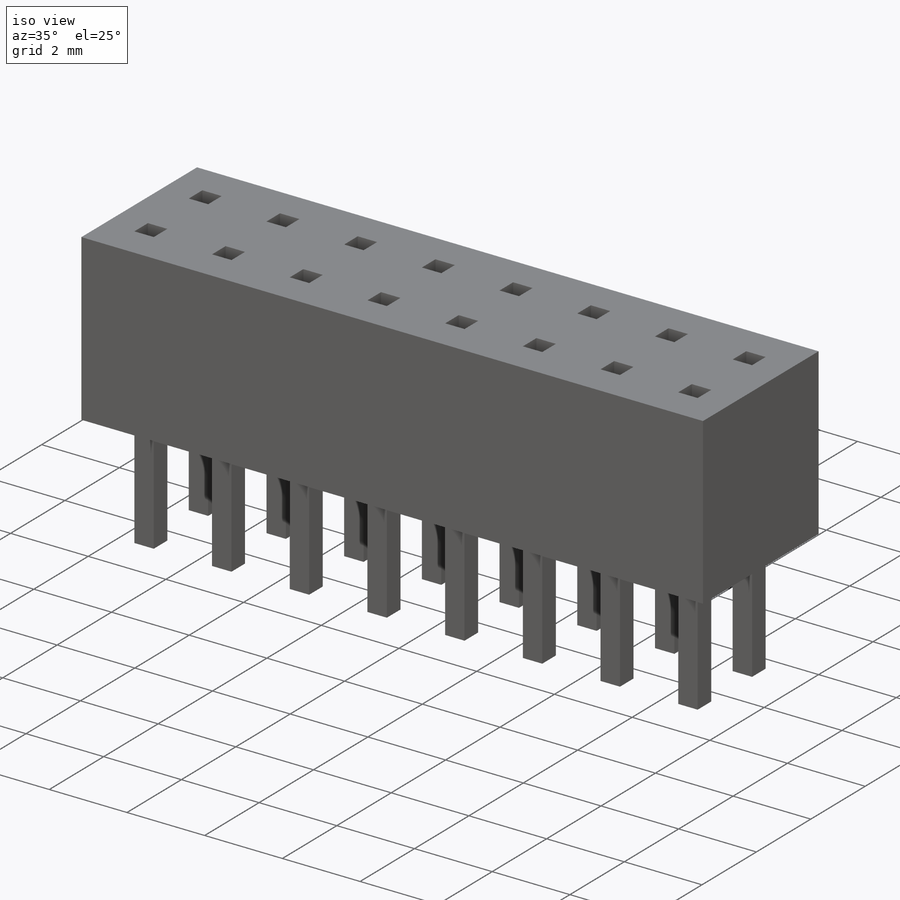
[diagram: iso view]
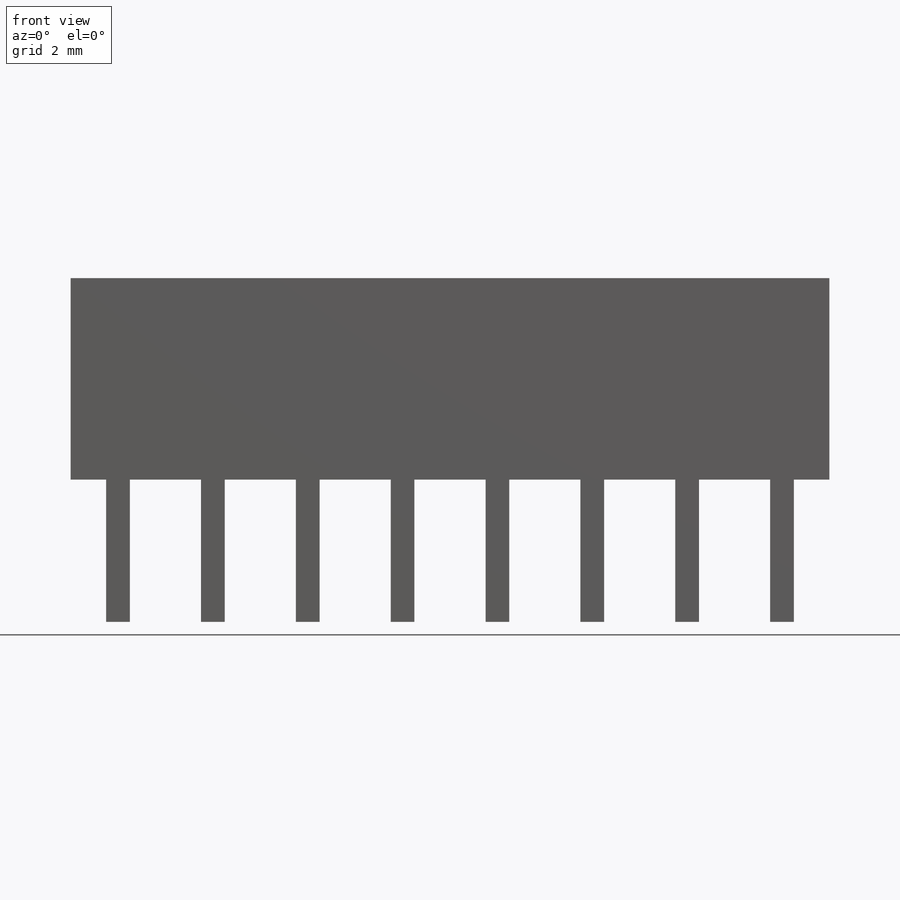
[diagram: front view]
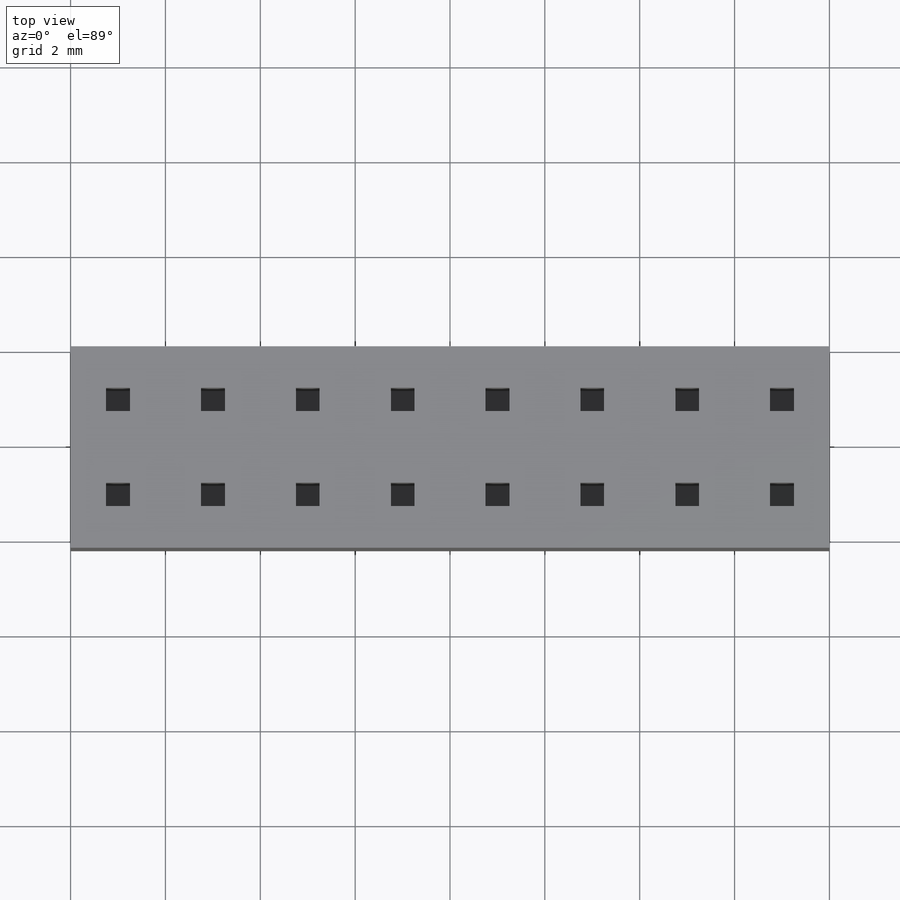
[diagram: top view]
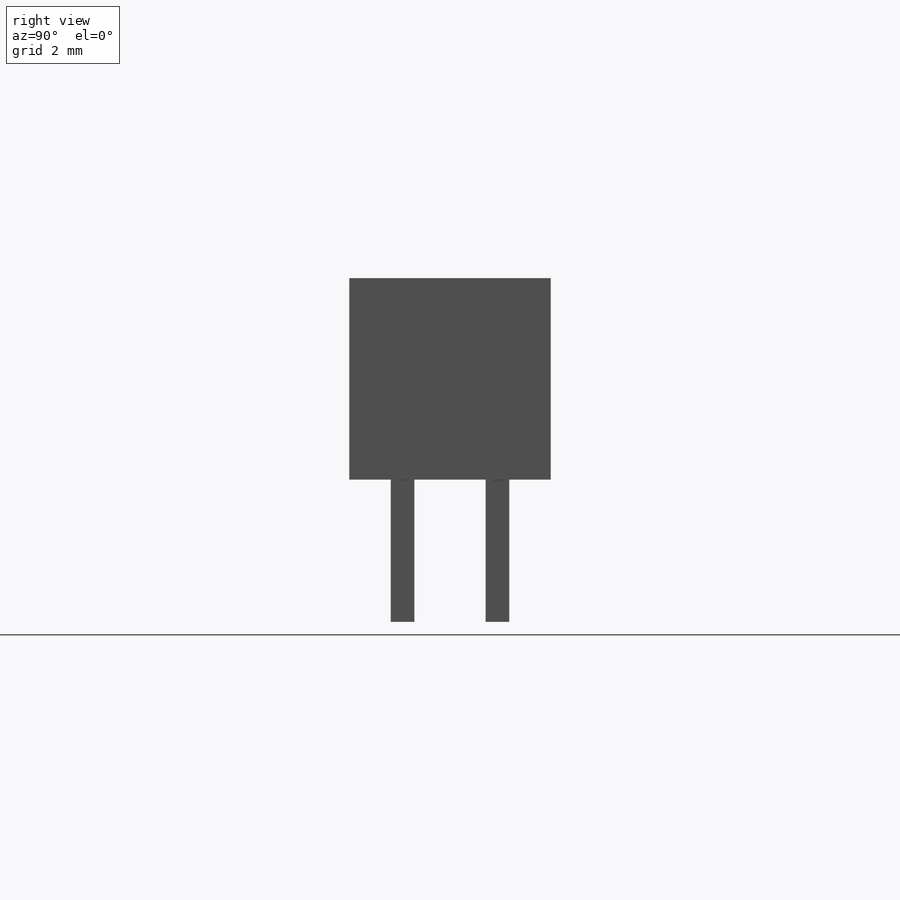
[diagram: right view]
SOLIDWORKS PART (.sldprt)
format: sldprt  version: not decoded by parser v0  size: 390,656 bytes
history: native  units: mm
features: sketch x3, extrude x2, plane x2, material x1, cut_extrude x1 (+12 scaffold rows collapsed)
feature tree (21):
  scaffold x12  (default folders/planes/origin — collapsed)
  material  "Material <not specified>"
  sketch  "Sketch1"
  extrude  "Boss-Extrude1"  Depth=4.25mm
  sketch  "Sketch3"  dims[c1.D2=17.0 c1.D1=8.0 c2.D2=2.0]
  extrude  "Boss-Extrude2"  Depth=3mm
  sketch  "Sketch4"  dims[D2=17.0]
  cut_extrude  "Cut-Extrude1"  Depth=4mm
  plane  "Plane1"
  plane  "Plane2"
decode coverage: 5 of 6 modeling features carry decoded parameters
note: suppression state not decoded; provenance and decode notes live in map.json
